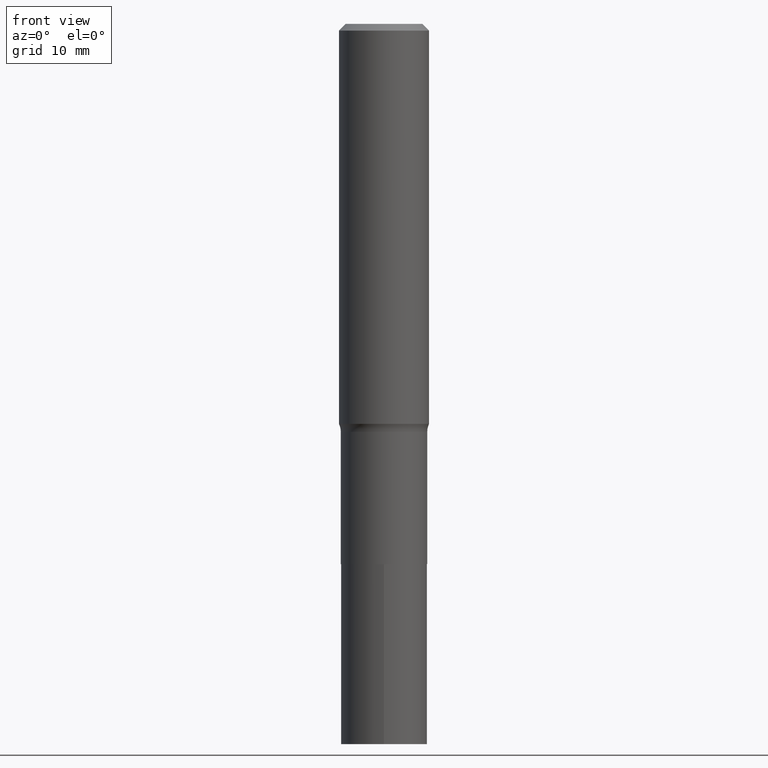
[diagram: clean part render]
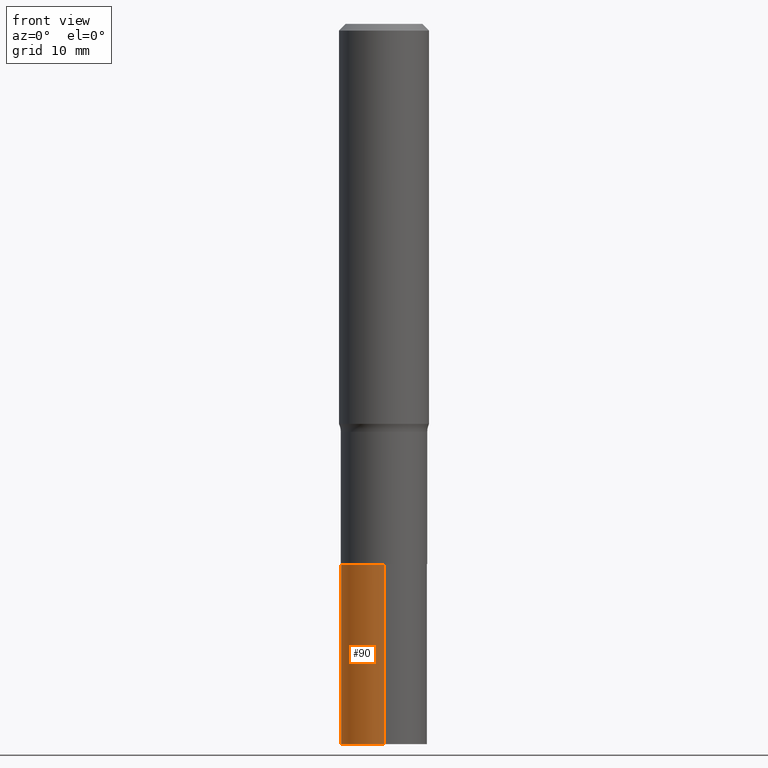
[diagram: same view with one face highlighted and labeled with its STEP entity id]
A machine part, front view. The second image highlights one B-rep face of the part: STEP entity #90.
In plain terms, the highlighted cylindrical surface (partial cylindrical patch) has radius 4.8006 mm, axis along (-0, 0, 1).
Its self-contained STEP definition (entity closure, byte-faithful):
#1 = DIRECTION ( 'NONE',  ( -6.982962677686265922E-15, -1.000000000000000000, 2.890844437739961472E-15 ) ) ;
#6 = CARTESIAN_POINT ( 'NONE',  ( 1.342925770586666472E-15, 0.1889999999999917579, -2.362600000000000477 ) ) ;
#8 = CIRCLE ( 'NONE', #87, 0.1889999999999999736 ) ;
#16 = ORIENTED_EDGE ( 'NONE', *, *, #352, .T. ) ;
#30 = CARTESIAN_POINT ( 'NONE',  ( 1.342925770586646750E-15, 0.1889999999999917302, -2.362600000000000477 ) ) ;
#33 = VERTEX_POINT ( 'NONE', #6 ) ;
#60 = LINE ( 'NONE', #30, #186 ) ;
#68 = ORIENTED_EDGE ( 'NONE', *, *, #175, .T. ) ;
#77 = DIRECTION ( 'NONE',  ( -2.446001586434225329E-29, 3.490718367202482243E-15, 1.000000000000000000 ) ) ;
#78 = DIRECTION ( 'NONE',  ( -6.982962677686265922E-15, -1.000000000000000000, 2.890844437739961472E-15 ) ) ;
#87 = AXIS2_PLACEMENT_3D ( 'NONE', #417, #309, #78 ) ;
#90 = ADVANCED_FACE ( 'NONE', ( #363 ), #289, .T. ) ;
#153 = DIRECTION ( 'NONE',  ( -6.982962677686265922E-15, -1.000000000000000000, 2.890844437739961472E-15 ) ) ;
#155 = VECTOR ( 'NONE', #227, 39.37007874015748143 ) ;
#171 = EDGE_CURVE ( 'NONE', #33, #416, #347, .T. ) ;
#175 = EDGE_CURVE ( 'NONE', #193, #416, #399, .T. ) ;
#179 = AXIS2_PLACEMENT_3D ( 'NONE', #293, #77, #1 ) ;
#183 = CARTESIAN_POINT ( 'NONE',  ( -1.319779946082627116E-15, -0.1890000000000109925, -3.149600000000000399 ) ) ;
#186 = VECTOR ( 'NONE', #394, 39.37007874015748143 ) ;
#193 = VERTEX_POINT ( 'NONE', #183 ) ;
#227 = DIRECTION ( 'NONE',  ( -2.446001586434225329E-29, 3.490718367202482243E-15, 1.000000000000000000 ) ) ;
#280 = CARTESIAN_POINT ( 'NONE',  ( 1.342925770586656414E-15, 0.1889999999999889824, -3.149600000000001288 ) ) ;
#285 = EDGE_LOOP ( 'NONE', ( #451, #16, #68, #338 ) ) ;
#288 = CARTESIAN_POINT ( 'NONE',  ( 5.777664601493003770E-29, -8.248973811150816829E-15, -2.362600000000000033 ) ) ;
#289 = CYLINDRICAL_SURFACE ( 'NONE', #179, 0.1889999999999999736 ) ;
#290 = EDGE_CURVE ( 'NONE', #314, #33, #60, .T. ) ;
#293 = CARTESIAN_POINT ( 'NONE',  ( 5.777664601493003770E-29, -8.248973811150816829E-15, -2.362600000000000033 ) ) ;
#309 = DIRECTION ( 'NONE',  ( -2.446001586434225329E-29, 3.490718367202482243E-15, 1.000000000000000000 ) ) ;
#314 = VERTEX_POINT ( 'NONE', #280 ) ;
#338 = ORIENTED_EDGE ( 'NONE', *, *, #171, .F. ) ;
#344 = CARTESIAN_POINT ( 'NONE',  ( -1.319779946082646246E-15, -0.1890000000000082447, -2.362599999999999589 ) ) ;
#347 = CIRCLE ( 'NONE', #437, 0.1889999999999999736 ) ;
#352 = EDGE_CURVE ( 'NONE', #314, #193, #8, .T. ) ;
#360 = DIRECTION ( 'NONE',  ( -2.446001586434225329E-29, 3.490718367202482243E-15, 1.000000000000000000 ) ) ;
#363 = FACE_OUTER_BOUND ( 'NONE', #285, .T. ) ;
#394 = DIRECTION ( 'NONE',  ( -2.446001586434225329E-29, 3.490718367202482243E-15, 1.000000000000000000 ) ) ;
#399 = LINE ( 'NONE', #430, #155 ) ;
#416 = VERTEX_POINT ( 'NONE', #344 ) ;
#417 = CARTESIAN_POINT ( 'NONE',  ( 7.702667850016740557E-29, -1.099616916613917186E-14, -3.149600000000000843 ) ) ;
#430 = CARTESIAN_POINT ( 'NONE',  ( -1.319779946082646246E-15, -0.1890000000000082447, -2.362599999999999589 ) ) ;
#437 = AXIS2_PLACEMENT_3D ( 'NONE', #288, #360, #153 ) ;
#451 = ORIENTED_EDGE ( 'NONE', *, *, #290, .F. ) ;